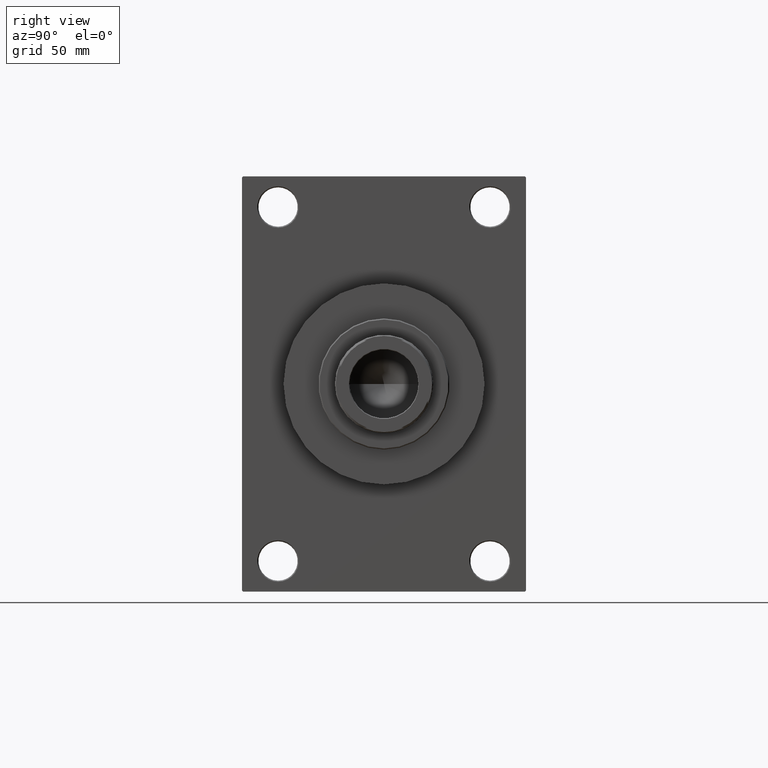
[diagram: clean part render]
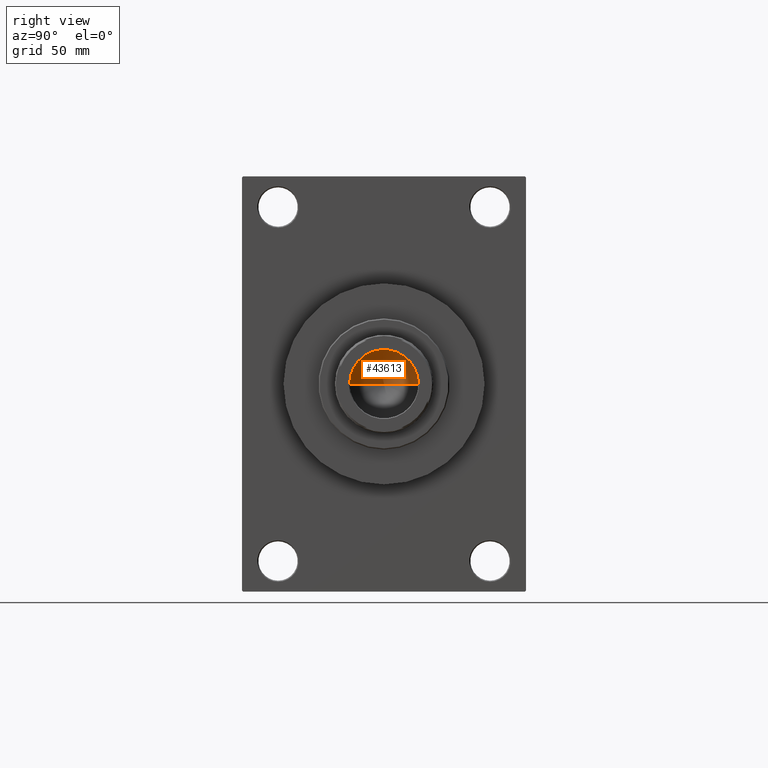
[diagram: same view with one face highlighted and labeled with its STEP entity id]
A machine part, right view. The second image highlights one B-rep face of the part: STEP entity #43613.
In plain terms, the highlighted conical surface has half-angle 59 deg.
Its self-contained STEP definition (entity closure, byte-faithful):
#1413 = AXIS2_PLACEMENT_3D ( 'NONE', #37950, #29999, #34560 ) ;
#8342 = CARTESIAN_POINT ( 'NONE',  ( 15.74999999999998934, 0.000000000000000000, 123.0000000000000142 ) ) ;
#8395 = EDGE_CURVE ( 'NONE', #35834, #24839, #44387, .T. ) ;
#8863 = DIRECTION ( 'NONE',  ( 1.000000000000000000, 0.000000000000000000, 0.000000000000000000 ) ) ;
#9939 = ORIENTED_EDGE ( 'NONE', *, *, #8395, .T. ) ;
#11272 = AXIS2_PLACEMENT_3D ( 'NONE', #26259, #41447, #8863 ) ;
#14362 = LINE ( 'NONE', #40657, #41604 ) ;
#15769 = EDGE_LOOP ( 'NONE', ( #39630, #33116, #9939 ) ) ;
#18909 = FACE_OUTER_BOUND ( 'NONE', #15769, .T. ) ;
#20543 = VECTOR ( 'NONE', #43334, 1000.000000000000000 ) ;
#20676 = CONICAL_SURFACE ( 'NONE', #1413, 15.74999999999998934, 1.029744258676652979 ) ;
#21936 = EDGE_CURVE ( 'NONE', #35582, #24839, #25011, .T. ) ;
#24839 = VERTEX_POINT ( 'NONE', #8342 ) ;
#25011 = LINE ( 'NONE', #29590, #20543 ) ;
#25462 = DIRECTION ( 'NONE',  ( -0.8571673007021115565, 1.049727191138617710E-16, 0.5150380749100554878 ) ) ;
#26259 = CARTESIAN_POINT ( 'NONE',  ( 0.000000000000000000, 0.000000000000000000, 123.0000000000000142 ) ) ;
#29590 = CARTESIAN_POINT ( 'NONE',  ( 15.74999999999998934, 0.000000000000000000, 123.0000000000000142 ) ) ;
#29999 = DIRECTION ( 'NONE',  ( -0.000000000000000000, -0.000000000000000000, 1.000000000000000000 ) ) ;
#33116 = ORIENTED_EDGE ( 'NONE', *, *, #33707, .T. ) ;
#33707 = EDGE_CURVE ( 'NONE', #35582, #35834, #14362, .T. ) ;
#34560 = DIRECTION ( 'NONE',  ( 1.000000000000000000, 0.000000000000000000, 0.000000000000000000 ) ) ;
#35005 = CARTESIAN_POINT ( 'NONE',  ( -1.584115414415908206E-14, 0.000000000000000000, 113.5364452503159214 ) ) ;
#35582 = VERTEX_POINT ( 'NONE', #35005 ) ;
#35834 = VERTEX_POINT ( 'NONE', #39044 ) ;
#37950 = CARTESIAN_POINT ( 'NONE',  ( 0.000000000000000000, 0.000000000000000000, 123.0000000000000142 ) ) ;
#39044 = CARTESIAN_POINT ( 'NONE',  ( -15.74999999999998934, 1.928818708657080161E-15, 123.0000000000000142 ) ) ;
#39630 = ORIENTED_EDGE ( 'NONE', *, *, #21936, .F. ) ;
#40657 = CARTESIAN_POINT ( 'NONE',  ( -15.74999999999998934, 1.928818708657080161E-15, 123.0000000000000142 ) ) ;
#41447 = DIRECTION ( 'NONE',  ( -0.000000000000000000, -0.000000000000000000, 1.000000000000000000 ) ) ;
#41604 = VECTOR ( 'NONE', #25462, 1000.000000000000000 ) ;
#43334 = DIRECTION ( 'NONE',  ( 0.8571673007021115565, 0.000000000000000000, 0.5150380749100554878 ) ) ;
#43613 = ADVANCED_FACE ( 'NONE', ( #18909 ), #20676, .F. ) ;
#44387 = CIRCLE ( 'NONE', #11272, 15.74999999999998934 ) ;